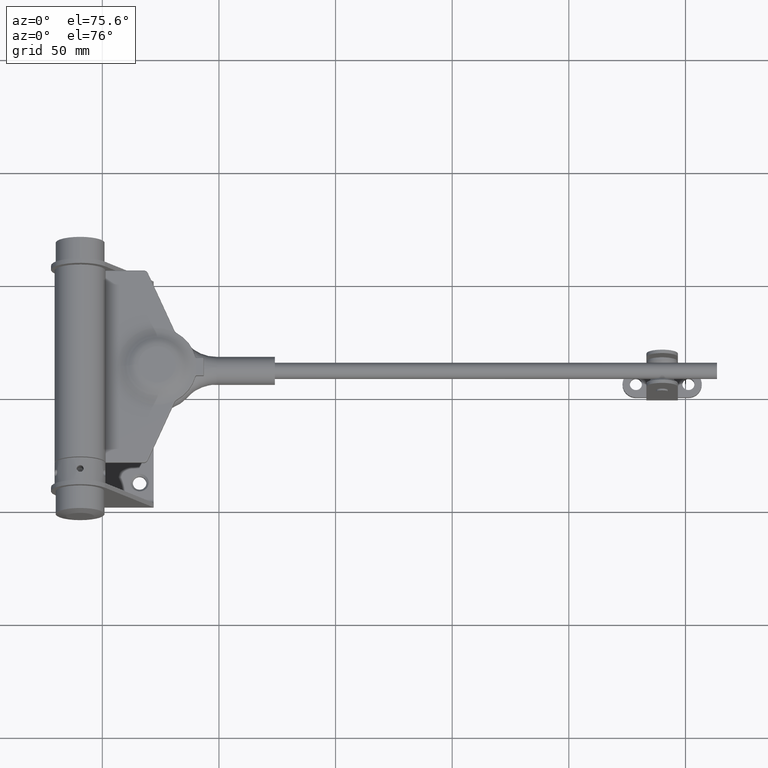
[diagram: clean part render]
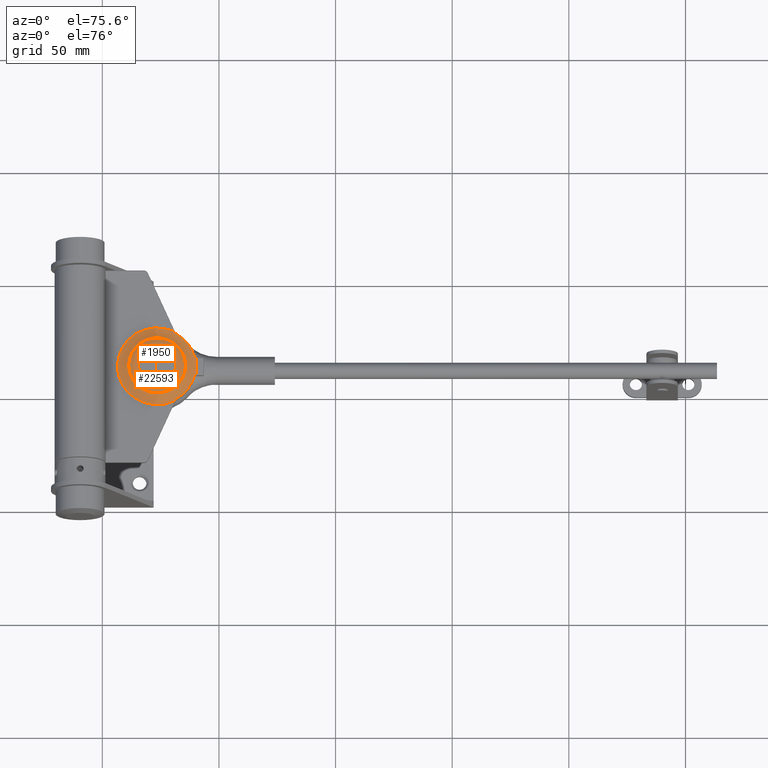
[diagram: same view with one multi-face feature highlighted, each face labeled with its STEP entity id]
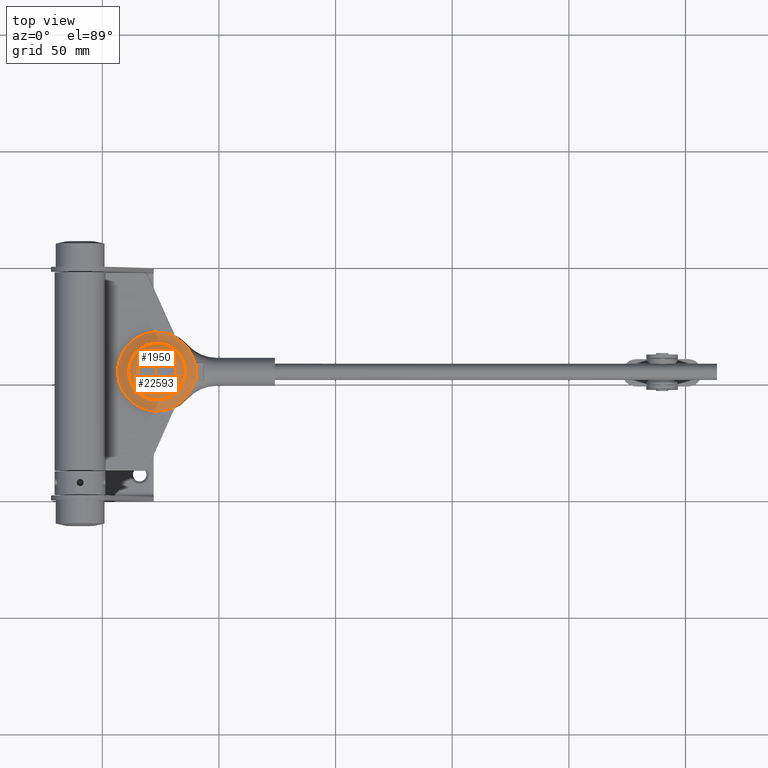
[diagram: same view with one multi-face feature highlighted, each face labeled with its STEP entity id]
A machine part, auxiliary view. The highlighted faces form ONE feature: a constant-radius fillet chain: 2 tangent blend faces with common blend radius 7.5 mm. The faces share edges in the B-rep.
A second angle (top view) of the same feature is appended — it is thin or edge-on in the first view.
Their STEP definitions:
[1] entity #22593 (Torus):
#44 = EDGE_CURVE ( 'NONE', #9550, #16686, #21517, .T. ) ;
#570 = CARTESIAN_POINT ( 'NONE',  ( -0.9999999999999941158, 15.23851650682025038, 40.18555802495642126 ) ) ;
#1038 = CARTESIAN_POINT ( 'NONE',  ( -1.010931492056109660, -3.943973211248108512, 49.10574004636423240 ) ) ;
#1060 = CARTESIAN_POINT ( 'NONE',  ( -0.9999999999999940048, -15.46086696712055719, 40.06835147859833057 ) ) ;
#1120 = DIRECTION ( 'NONE',  ( -2.465190328815646565E-32, 2.095411779493295442E-30, -1.000000000000000000 ) ) ;
#1296 = VERTEX_POINT ( 'NONE', #1060 ) ;
#1483 = CARTESIAN_POINT ( 'NONE',  ( -1.013852824246048945, 4.250420168067224225, 48.97358387094447352 ) ) ;
#1807 = CARTESIAN_POINT ( 'NONE',  ( -1.013852824246048723, -14.53052181846719471, 40.88342970815893551 ) ) ;
#2668 = ORIENTED_EDGE ( 'NONE', *, *, #3617, .T. ) ;
#2823 = CIRCLE ( 'NONE', #12238, 12.20000000000007212 ) ;
#2885 = EDGE_CURVE ( 'NONE', #1296, #16686, #9705, .T. ) ;
#2920 = DIRECTION ( 'NONE',  ( 0.000000000000000000, 2.020647810504629082E-30, -1.000000000000000000 ) ) ;
#2937 = CARTESIAN_POINT ( 'NONE',  ( -1.000000000000091038, 1.214306433183764966E-14, 33.00000000000019185 ) ) ;
#2954 = CARTESIAN_POINT ( 'NONE',  ( -1.000000000000000888, 3.541316839253950466, 49.62705852049692368 ) ) ;
#3029 = CARTESIAN_POINT ( 'NONE',  ( -1.000000000000000888, 3.567470922839520941, 49.54660946921845266 ) ) ;
#3112 = DIRECTION ( 'NONE',  ( -1.000000000000000000, -3.769267568384171061E-30, 2.465190328815646565E-32 ) ) ;
#3617 = EDGE_CURVE ( 'NONE', #8817, #5162, #4248, .T. ) ;
#3866 = AXIS2_PLACEMENT_3D ( 'NONE', #2937, #12179, #15635 ) ;
#3939 = EDGE_CURVE ( 'NONE', #19542, #19542, #2823, .T. ) ;
#4248 = B_SPLINE_CURVE_WITH_KNOTS ( 'NONE', 3,
 ( #10130, #17456, #19297, #1038, #21131, #10214, #14411, #5484, #5313, #14669 ),
 .UNSPECIFIED., .F., .F.,
 ( 4, 2, 2, 2, 4 ),
 ( 0.000000000000000000, 0.0002534289706895226715, 0.0005068579413790453431, 0.0007602869120685680146, 0.001013715882758090686 ),
 .UNSPECIFIED. ) ;
#4535 = ORIENTED_EDGE ( 'NONE', *, *, #23113, .T. ) ;
#4777 = DIRECTION ( 'NONE',  ( 0.000000000000000000, -2.050669890963204183E-30, 1.000000000000000000 ) ) ;
#4854 = CARTESIAN_POINT ( 'NONE',  ( -1.010932428586702292, 3.944004154476976609, 49.10571400989196178 ) ) ;
#4868 = CARTESIAN_POINT ( 'NONE',  ( -1.000000000000000888, -3.541316839253960680, 49.62705852049692368 ) ) ;
#4934 = CARTESIAN_POINT ( 'NONE',  ( -1.013852824246048945, 4.168784581348925045, 48.99530633141562674 ) ) ;
#5162 = VERTEX_POINT ( 'NONE', #4868 ) ;
#5219 = CARTESIAN_POINT ( 'NONE',  ( -1.013852824246048945, 14.40741519184097541, 41.10233551373389105 ) ) ;
#5313 = CARTESIAN_POINT ( 'NONE',  ( -1.000000000000000888, -3.567471755631975938, 49.54660690757786767 ) ) ;
#5404 = EDGE_CURVE ( 'NONE', #5162, #19875, #15049, .T. ) ;
#5484 = CARTESIAN_POINT ( 'NONE',  ( -1.000992291605879769, -3.603870759718172945, 49.47159259021674416 ) ) ;
#6164 = FACE_OUTER_BOUND ( 'NONE', #22110, .T. ) ;
#7112 = CARTESIAN_POINT ( 'NONE',  ( -2.600000000000095124, 1.214306433183767490E-14, 20.80000000000011795 ) ) ;
#7375 = ORIENTED_EDGE ( 'NONE', *, *, #5404, .T. ) ;
#7569 = CARTESIAN_POINT ( 'NONE',  ( -1.011155900955523768, 14.68287193447333827, 40.68370879548961483 ) ) ;
#7895 = ORIENTED_EDGE ( 'NONE', *, *, #2885, .F. ) ;
#8394 = DIRECTION ( 'NONE',  ( 0.000000000000000000, -2.050669890963204183E-30, 1.000000000000000000 ) ) ;
#8714 = DIRECTION ( 'NONE',  ( -1.000000000000000000, -3.769267568384171061E-30, 2.465190328815646565E-32 ) ) ;
#8756 = CARTESIAN_POINT ( 'NONE',  ( -1.013852824244529494, 1.214306433183764966E-14, 33.00000000000019185 ) ) ;
#8817 = VERTEX_POINT ( 'NONE', #18911 ) ;
#8875 = CARTESIAN_POINT ( 'NONE',  ( -1.013852824246048945, -14.40741519184097719, 41.10233551373369920 ) ) ;
#9127 = CARTESIAN_POINT ( 'NONE',  ( -1.000000000000000888, 3.541316839253950466, 49.62705852049692368 ) ) ;
#9480 = CARTESIAN_POINT ( 'NONE',  ( -1.004158466382593762, 15.03914313302343864, 40.33295312993592319 ) ) ;
#9500 = ORIENTED_EDGE ( 'NONE', *, *, #44, .T. ) ;
#9550 = VERTEX_POINT ( 'NONE', #5219 ) ;
#9705 = CIRCLE ( 'NONE', #23385, 17.00000000000011369 ) ;
#10130 = CARTESIAN_POINT ( 'NONE',  ( -1.013852824246048945, -4.250420168067219784, 48.97358387094445931 ) ) ;
#10214 = CARTESIAN_POINT ( 'NONE',  ( -1.005760272595603855, -3.751018974044510124, 49.26706340083994462 ) ) ;
#10353 = CARTESIAN_POINT ( 'NONE',  ( -2.600000000000095124, 1.214306433183764966E-14, 33.00000000000019185 ) ) ;
#10848 = CARTESIAN_POINT ( 'NONE',  ( -1.013852824246048945, -14.40741519184097719, 41.10233551373369920 ) ) ;
#11462 = CARTESIAN_POINT ( 'NONE',  ( -1.013852824246048945, 14.40741519184097541, 41.10233551373389105 ) ) ;
#11572 = CIRCLE ( 'NONE', #22974, 16.52941176470589824 ) ;
#12179 = DIRECTION ( 'NONE',  ( -1.000000000000000000, -3.769267568384171061E-30, 2.465190328815646565E-32 ) ) ;
#12238 = AXIS2_PLACEMENT_3D ( 'NONE', #10353, #15538, #2920 ) ;
#12596 = ORIENTED_EDGE ( 'NONE', *, *, #19838, .T. ) ;
#12891 = ORIENTED_EDGE ( 'NONE', *, *, #17476, .T. ) ;
#13427 = B_SPLINE_CURVE_WITH_KNOTS ( 'NONE', 3,
 ( #2954, #3029, #17801, #21224, #23125, #15960, #4854, #19619, #4934, #17635 ),
 .UNSPECIFIED., .F., .F.,
 ( 4, 2, 2, 2, 4 ),
 ( 1.453963218419234284E-17, 0.0002537770540359323649, 0.0005075541080718502015, 0.0007613311621077680381, 0.001015108216143685875 ),
 .UNSPECIFIED. ) ;
#14411 = CARTESIAN_POINT ( 'NONE',  ( -1.003871690769823077, -3.695569333477961571, 49.33158341340996600 ) ) ;
#14501 = ORIENTED_EDGE ( 'NONE', *, *, #17534, .T. ) ;
#14539 = CARTESIAN_POINT ( 'NONE',  ( -1.011195128086196604, -14.68086724102064267, 40.68611319205746213 ) ) ;
#14669 = CARTESIAN_POINT ( 'NONE',  ( -1.000000000000000888, -3.541316839253960680, 49.62705852049692368 ) ) ;
#14730 = TOROIDAL_SURFACE ( 'NONE', #18414, 17.00000000000001421, 8.000000000000033751 ) ;
#15049 = CIRCLE ( 'NONE', #3866, 17.00000000000012079 ) ;
#15443 = DIRECTION ( 'NONE',  ( 1.000000000000000000, 3.769267568384171061E-30, -2.465190328815646565E-32 ) ) ;
#15444 = AXIS2_PLACEMENT_3D ( 'NONE', #8756, #3112, #4777 ) ;
#15538 = DIRECTION ( 'NONE',  ( 1.000000000000000000, 3.769267568384171061E-30, -2.465190328815646565E-32 ) ) ;
#15635 = DIRECTION ( 'NONE',  ( 0.000000000000000000, 2.084535939807346177E-30, -1.000000000000000000 ) ) ;
#15795 = CARTESIAN_POINT ( 'NONE',  ( -9.000000000000126121, 1.214306433183764966E-14, 33.00000000000019185 ) ) ;
#15845 = CARTESIAN_POINT ( 'NONE',  ( -1.013852824244362960, 1.214306433183764966E-14, 33.00000000000019185 ) ) ;
#15875 = DIRECTION ( 'NONE',  ( 1.000000000000000000, 3.769267568384171061E-30, -2.465190328815646565E-32 ) ) ;
#15960 = CARTESIAN_POINT ( 'NONE',  ( -1.009274626985076528, 3.874502701020722917, 49.15480144648166316 ) ) ;
#16686 = VERTEX_POINT ( 'NONE', #23277 ) ;
#17456 = CARTESIAN_POINT ( 'NONE',  ( -1.013852824246049167, -4.168783464700003272, 48.99530662854537155 ) ) ;
#17476 = EDGE_CURVE ( 'NONE', #19875, #21318, #13427, .T. ) ;
#17534 = EDGE_CURVE ( 'NONE', #17799, #8817, #19968, .T. ) ;
#17635 = CARTESIAN_POINT ( 'NONE',  ( -1.013852824246048945, 4.250420168067224225, 48.97358387094447352 ) ) ;
#17799 = VERTEX_POINT ( 'NONE', #10848 ) ;
#17801 = CARTESIAN_POINT ( 'NONE',  ( -1.000995171047719179, 3.603966654483218957, 49.47142937117659045 ) ) ;
#17880 = FACE_OUTER_BOUND ( 'NONE', #18948, .T. ) ;
#18414 = AXIS2_PLACEMENT_3D ( 'NONE', #15795, #15875, #1120 ) ;
#18496 = CARTESIAN_POINT ( 'NONE',  ( -1.013852824246048945, 14.53053115882371138, 40.88341309931907830 ) ) ;
#18754 = ORIENTED_EDGE ( 'NONE', *, *, #3939, .T. ) ;
#18911 = CARTESIAN_POINT ( 'NONE',  ( -1.013852824246048945, -4.250420168067219784, 48.97358387094445931 ) ) ;
#18948 = EDGE_LOOP ( 'NONE', ( #7895, #12596, #14501, #2668, #7375, #12891, #4535, #9500 ) ) ;
#19297 = CARTESIAN_POINT ( 'NONE',  ( -1.013212811317235840, -4.091048809072265868, 49.02620527335603384 ) ) ;
#19419 = CARTESIAN_POINT ( 'NONE',  ( -0.9999999999999940048, -15.46086696712055719, 40.06835147859833057 ) ) ;
#19542 = VERTEX_POINT ( 'NONE', #7112 ) ;
#19619 = CARTESIAN_POINT ( 'NONE',  ( -1.013214695278197963, 4.091199738010975473, 49.02613296945040844 ) ) ;
#19838 = EDGE_CURVE ( 'NONE', #1296, #17799, #21825, .T. ) ;
#19875 = VERTEX_POINT ( 'NONE', #9127 ) ;
#19887 = CARTESIAN_POINT ( 'NONE',  ( -1.004208916081831937, -15.03658189026479164, 40.33504947363521609 ) ) ;
#19968 = CIRCLE ( 'NONE', #15444, 16.52941176470589824 ) ;
#20324 = CARTESIAN_POINT ( 'NONE',  ( -0.9999999999999940048, 15.46086696712055897, 40.06835147859833057 ) ) ;
#20952 = DIRECTION ( 'NONE',  ( 0.000000000000000000, 2.084535939807347228E-30, -1.000000000000000000 ) ) ;
#21131 = CARTESIAN_POINT ( 'NONE',  ( -1.009271961804431683, -3.874397582213103153, 49.15488180832891629 ) ) ;
#21224 = CARTESIAN_POINT ( 'NONE',  ( -1.003872485515553858, 3.695590443100872591, 49.33156800678217735 ) ) ;
#21318 = VERTEX_POINT ( 'NONE', #1483 ) ;
#21415 = CARTESIAN_POINT ( 'NONE',  ( -1.000000000000000888, -15.23856819745252977, 40.18553077751793978 ) ) ;
#21517 = B_SPLINE_CURVE_WITH_KNOTS ( 'NONE', 3,
 ( #11462, #18496, #7569, #9480, #570, #20324 ),
 .UNSPECIFIED., .F., .F.,
 ( 4, 2, 4 ),
 ( 0.000000000000000000, 0.0007477126641244255783, 0.001495425328248851157 ),
 .UNSPECIFIED. ) ;
#21825 = B_SPLINE_CURVE_WITH_KNOTS ( 'NONE', 3,
 ( #19419, #21415, #19887, #14539, #1807, #8875 ),
 .UNSPECIFIED., .F., .F.,
 ( 4, 2, 4 ),
 ( 0.000000000000000000, 0.0007474981209224097582, 0.001494996241844819516 ),
 .UNSPECIFIED. ) ;
#22110 = EDGE_LOOP ( 'NONE', ( #18754 ) ) ;
#22593 = ADVANCED_FACE ( 'NONE', ( #17880, #6164 ), #14730, .F. ) ;
#22768 = CARTESIAN_POINT ( 'NONE',  ( -1.000000000000091038, 1.214306433183764966E-14, 33.00000000000019185 ) ) ;
#22974 = AXIS2_PLACEMENT_3D ( 'NONE', #15845, #8714, #8394 ) ;
#23113 = EDGE_CURVE ( 'NONE', #21318, #9550, #11572, .T. ) ;
#23125 = CARTESIAN_POINT ( 'NONE',  ( -1.005763394634410002, 3.751117200529111795, 49.26695889671044881 ) ) ;
#23277 = CARTESIAN_POINT ( 'NONE',  ( -0.9999999999999940048, 15.46086696712055897, 40.06835147859833057 ) ) ;
#23385 = AXIS2_PLACEMENT_3D ( 'NONE', #22768, #15443, #20952 ) ;
[2] entity #1950 (Torus):
#1950 = ADVANCED_FACE ( 'NONE', ( #5599, #6169 ), #7330, .T. ) ;
#2823 = CIRCLE ( 'NONE', #12238, 12.20000000000007212 ) ;
#2920 = DIRECTION ( 'NONE',  ( 0.000000000000000000, 2.020647810504629082E-30, -1.000000000000000000 ) ) ;
#3635 = CARTESIAN_POINT ( 'NONE',  ( 3.000000000000002665, 1.214306433183764966E-14, 33.00000000000019185 ) ) ;
#3939 = EDGE_CURVE ( 'NONE', #19542, #19542, #2823, .T. ) ;
#5599 = FACE_OUTER_BOUND ( 'NONE', #10104, .T. ) ;
#6169 = FACE_OUTER_BOUND ( 'NONE', #16082, .T. ) ;
#7112 = CARTESIAN_POINT ( 'NONE',  ( -2.600000000000095124, 1.214306433183767490E-14, 20.80000000000011795 ) ) ;
#7330 = TOROIDAL_SURFACE ( 'NONE', #16829, 8.000000000000000000, 6.999999999999999112 ) ;
#8539 = AXIS2_PLACEMENT_3D ( 'NONE', #21317, #8616, #15827 ) ;
#8616 = DIRECTION ( 'NONE',  ( 1.000000000000000000, 3.769267568384171061E-30, -2.465190328815646565E-32 ) ) ;
#8859 = CIRCLE ( 'NONE', #8539, 8.000000000000047962 ) ;
#10104 = EDGE_LOOP ( 'NONE', ( #13889 ) ) ;
#10353 = CARTESIAN_POINT ( 'NONE',  ( -2.600000000000095124, 1.214306433183764966E-14, 33.00000000000019185 ) ) ;
#12238 = AXIS2_PLACEMENT_3D ( 'NONE', #10353, #15538, #2920 ) ;
#12662 = VERTEX_POINT ( 'NONE', #23382 ) ;
#13889 = ORIENTED_EDGE ( 'NONE', *, *, #3939, .F. ) ;
#14397 = DIRECTION ( 'NONE',  ( 1.000000000000000000, 3.769267568384171061E-30, -2.465190328815646565E-32 ) ) ;
#15538 = DIRECTION ( 'NONE',  ( 1.000000000000000000, 3.769267568384171061E-30, -2.465190328815646565E-32 ) ) ;
#15827 = DIRECTION ( 'NONE',  ( 0.000000000000000000, 2.118522938825946827E-30, -1.000000000000000000 ) ) ;
#16082 = EDGE_LOOP ( 'NONE', ( #23247 ) ) ;
#16241 = EDGE_CURVE ( 'NONE', #12662, #12662, #8859, .T. ) ;
#16409 = DIRECTION ( 'NONE',  ( -2.465190328815646565E-32, 2.054325274013038848E-30, -1.000000000000000000 ) ) ;
#16829 = AXIS2_PLACEMENT_3D ( 'NONE', #3635, #14397, #16409 ) ;
#19542 = VERTEX_POINT ( 'NONE', #7112 ) ;
#21317 = CARTESIAN_POINT ( 'NONE',  ( -4.000000000000094147, 1.214306433183764966E-14, 33.00000000000019185 ) ) ;
#23247 = ORIENTED_EDGE ( 'NONE', *, *, #16241, .T. ) ;
#23382 = CARTESIAN_POINT ( 'NONE',  ( -4.000000000000094147, 1.214306433183766702E-14, 25.00000000000013856 ) ) ;